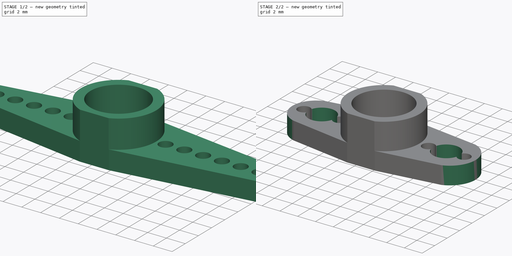
[diagram: build sequence overview — one tinted view per stage of 2, left to right]
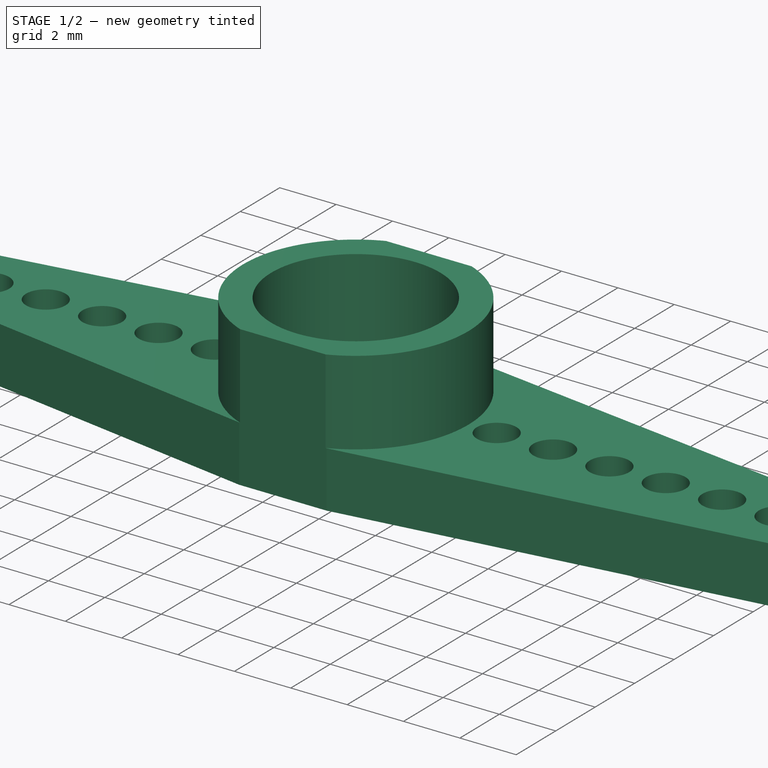
[diagram: stage 1 of 2 — iso view after this stage's code; geometry added in this stage tinted green]
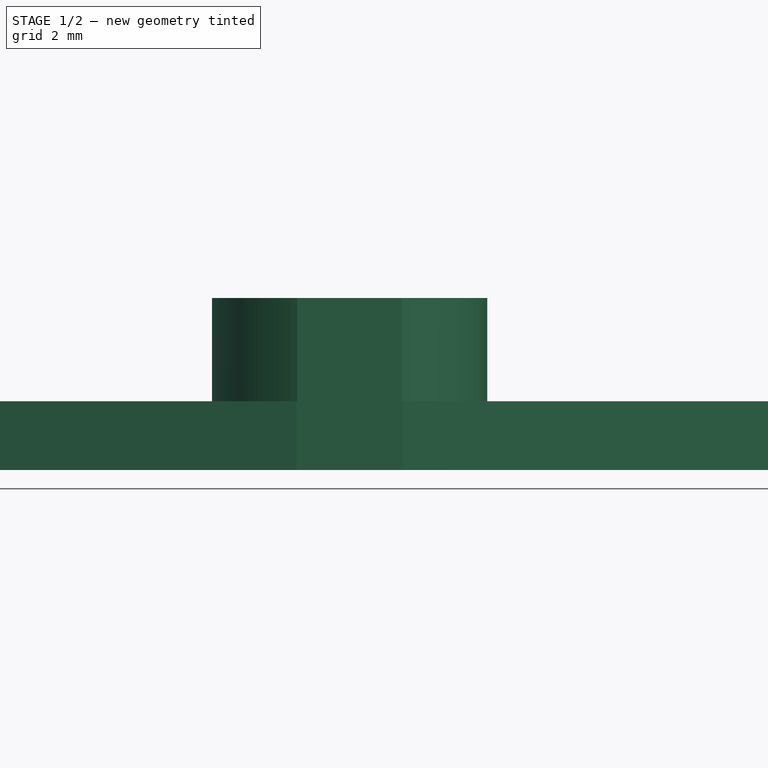
[diagram: stage 1 of 2 — front view after this stage's code; geometry added in this stage tinted green]
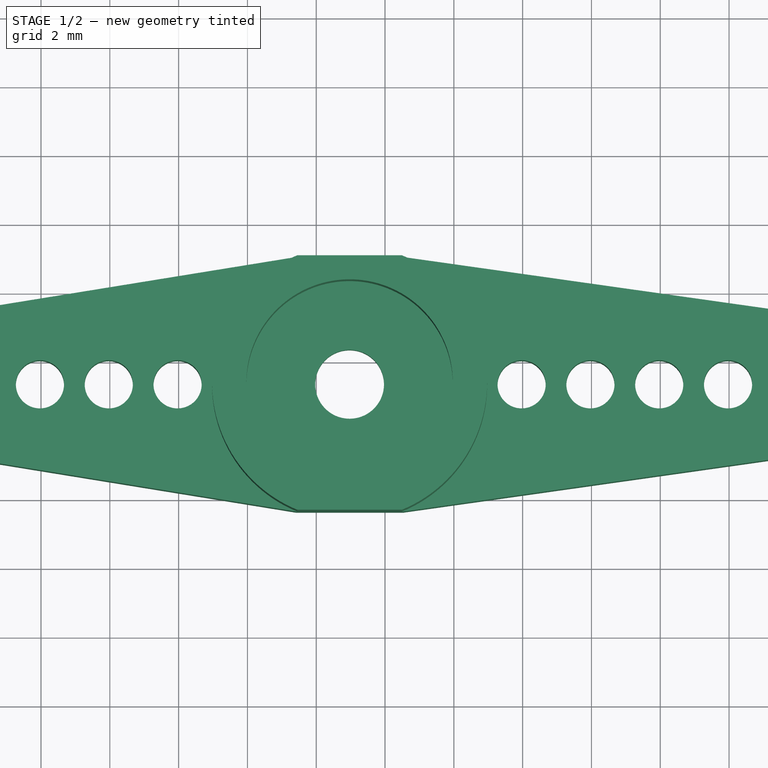
[diagram: stage 1 of 2 — top view after this stage's code; geometry added in this stage tinted green]
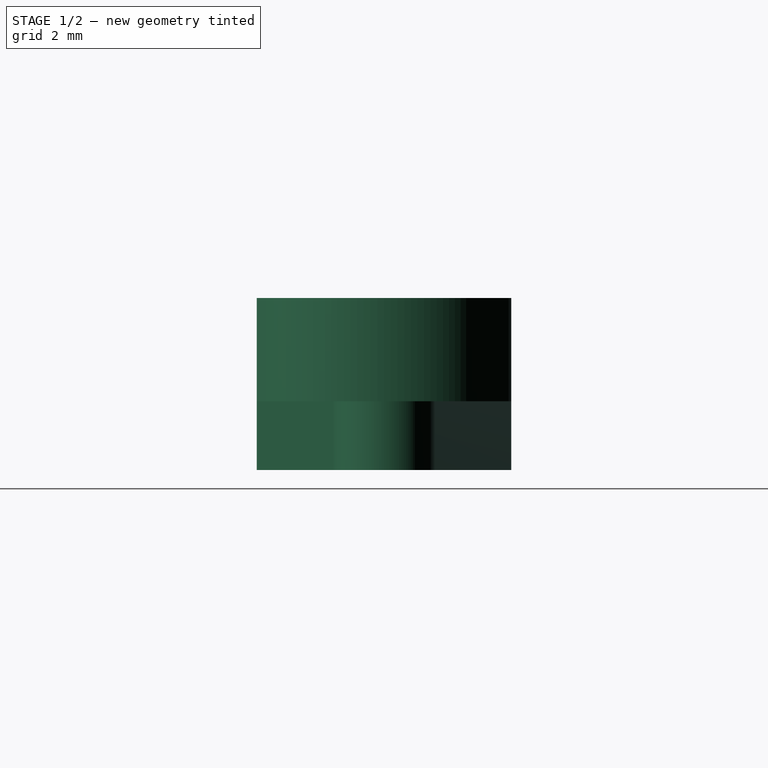
[diagram: stage 1 of 2 — right view after this stage's code; geometry added in this stage tinted green]
FCSTD DOCUMENT  (FreeCAD 0.16R6706 (Git))
Label: arm
License: All rights reserved
LicenseURL: http://en.wikipedia.org/wiki/All_rights_reserved
objects: Sketcher::SketchObject×2, PartDesign::Pocket×2, Part::Feature×1
note: 7 computed .brp shape members not serialized (recipe doc carries the construction recipe); baked Part::Feature solids carry a one-line shape summary decoded from their .brp

FEATURE [Part::Feature] Part__Feature001  label="Final-4-arms-horn"
  Placement = pos=(26.9697,9.3362,25.6722) rot=(0,0,1;0rad)
  shape: bbox 35 x 17 x 5 mm, 41 faces (baked)
FEATURE [Sketcher::SketchObject] Sketch
  Placement = pos=(26.9697,9.3362,25.6722) rot=(1,0,0;3.14159rad)
  Support = -> Part__Feature001 [Face4]
  sketch-geometry (8):
    g0: LineSegment StartX=-1.7 StartY=8.78634 StartZ=0 EndX=1.7 EndY=8.78634 EndZ=0
    g1: LineSegment StartX=1.7 StartY=8.78634 StartZ=0 EndX=1.7 EndY=3.7 EndZ=0
    g2: LineSegment StartX=1.7 StartY=3.7 StartZ=0 EndX=-1.7 EndY=3.7 EndZ=0
    g3: LineSegment StartX=-1.7 StartY=3.7 StartZ=0 EndX=-1.7 EndY=8.78634 EndZ=0
    g4: LineSegment StartX=-1.7 StartY=-3.7 StartZ=0 EndX=1.7 EndY=-3.7 EndZ=0
    g5: LineSegment StartX=1.7 StartY=-3.7 StartZ=0 EndX=1.7 EndY=-8.6 EndZ=0
    g6: LineSegment StartX=1.7 StartY=-8.6 StartZ=0 EndX=-1.7 EndY=-8.6 EndZ=0
    g7: LineSegment StartX=-1.7 StartY=-8.6 StartZ=0 EndX=-1.7 EndY=-3.7 EndZ=0
  constraints (22):
    c: Coincident(g0,g1)
    c: Coincident(g1,g2)
    c: Coincident(g2,g3)
    c: Coincident(g3,g0)
    c: Horizontal(g0)
    c: Horizontal(g2)
    c: Vertical(g1)
    c: Vertical(g3)
    c: Coincident(g4,g5)
    c: Coincident(g5,g6)
    c: Coincident(g6,g7)
    c: Coincident(g7,g4)
    c: Horizontal(g4)
    c: Horizontal(g6)
    c: Vertical(g5)
    c: Vertical(g7)
    c: Symmetric(g2,g4,g-1)
    c: Symmetric(g1,g4,g-1)
    c: PointOnObject(g1,g5)
    c: Distance(g-1,g4) = 3.7
    c: DistanceX(g-2,g4) = 1.7
    c: DistanceY(g-1,g5) = -8.6
FEATURE [PartDesign::Pocket] Pocket
  Length = 5
  Placement = pos=(26.9697,9.3362,25.6722) rot=(0,0,1;0rad)
  Sketch = -> Sketch
  Type = 1
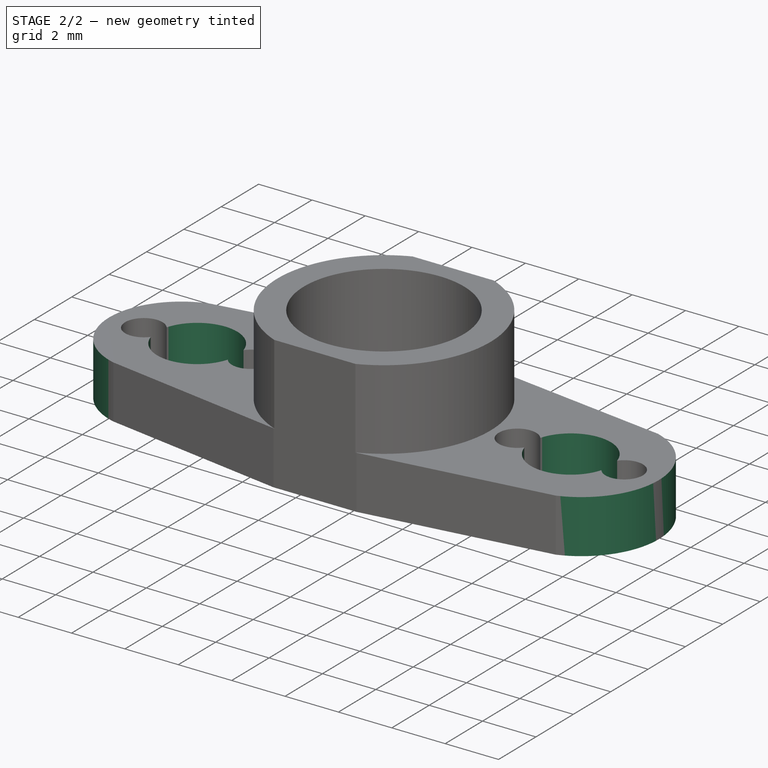
[diagram: stage 2 of 2 — iso view after this stage's code; geometry added in this stage tinted green]
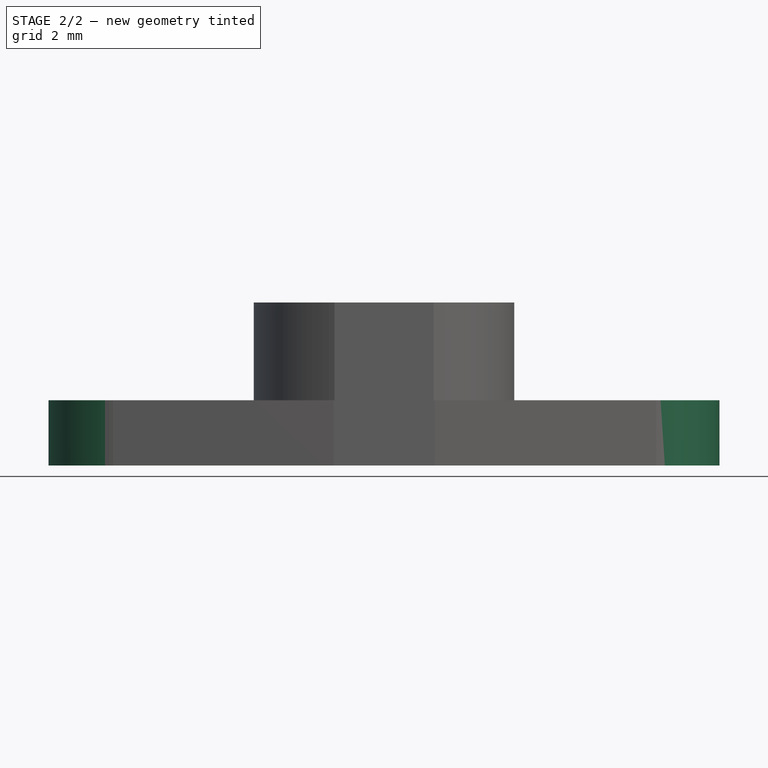
[diagram: stage 2 of 2 — front view after this stage's code; geometry added in this stage tinted green]
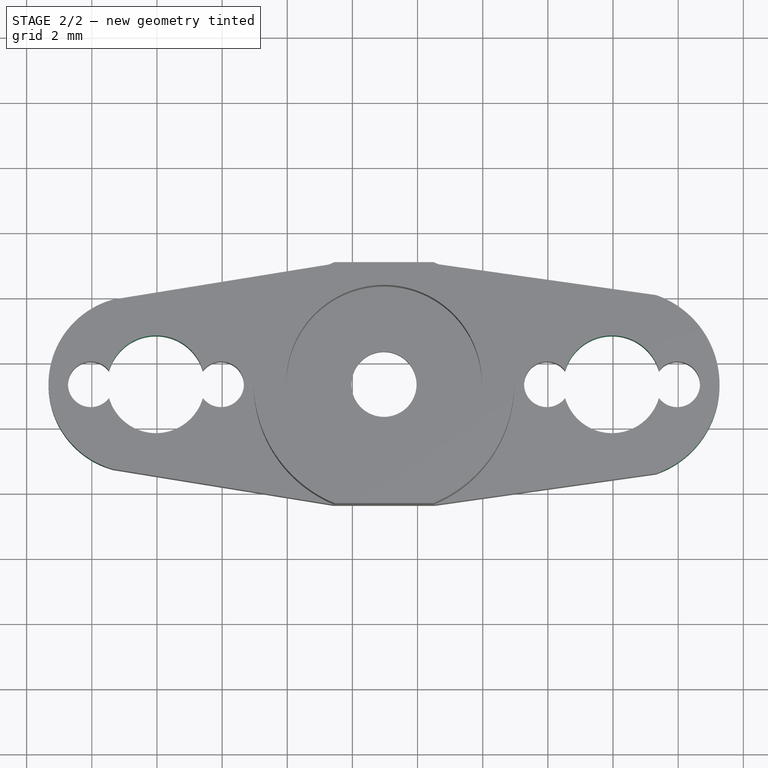
[diagram: stage 2 of 2 — top view after this stage's code; geometry added in this stage tinted green]
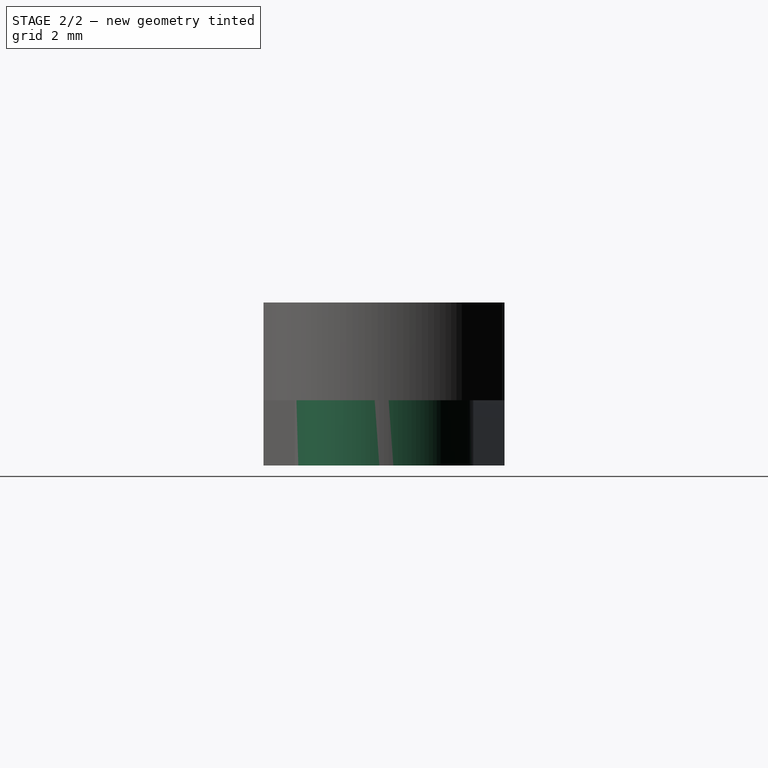
[diagram: stage 2 of 2 — right view after this stage's code; geometry added in this stage tinted green]
FEATURE [Sketcher::SketchObject] Sketch001
  Placement = pos=(26.9697,9.3362,25.6722) rot=(1,0,0;3.14159rad)
  Support = -> Pocket [Face2]
  sketch-geometry (6):
    g0: Circle CenterX=7 CenterY=0 CenterZ=0 NormalX=0 NormalY=0 NormalZ=1 Radius=1.5
    g1: Circle CenterX=-7 CenterY=0 CenterZ=0 NormalX=0 NormalY=0 NormalZ=1 Radius=1.5
    g2: ArcOfCircle CenterX=7.4 CenterY=0 CenterZ=0 NormalX=0 NormalY=0 NormalZ=1 Radius=2.9 StartAngle=4.92556 EndAngle=7.64081
    g3: ArcOfCircle CenterX=12.9589 CenterY=0 CenterZ=0 NormalX=0 NormalY=0 NormalZ=1 Radius=5.7 StartAngle=3.66203 EndAngle=8.90434
    g4: ArcOfCircle CenterX=-7.6 CenterY=0 CenterZ=0 NormalX=0 NormalY=0 NormalZ=1 Radius=2.7 StartAngle=1.70546 EndAngle=4.57772
    g5: ArcOfCircle CenterX=-11.8266 CenterY=0 CenterZ=0 NormalX=0 NormalY=0 NormalZ=1 Radius=4.7 StartAngle=0.605614 EndAngle=5.67757
  constraints (23):
    c: PointOnObject(g0,g-1)
    c: Radius(g0) = 1.5
    c: Distance(g-1,g0) = 7
    c: PointOnObject(g1,g-1)
    c: Radius(g1) = 1.5
    c: PointOnObject(g2,g-1)
    c: Radius(g2) = 2.9
    c: Distance(g-1,g2) = 7.4
    c: Distance(g-1,g2) = 8.5
    c: Coincident(g3,g2)
    c: Coincident(g3,g2)
    c: Distance(g-1,g2) = 8.5
    c: Radius(g3) = 5.7
    c: PointOnObject(g4,g-1)
    c: Distance(g-1,g4) = 7.6
    c: Radius(g4) = 2.7
    c: Distance(g-1,g4) = 8.4
    c: Distance(g-1,g4) = 8.4
    c: Distance(g-1,g1) = 7
    c: PointOnObject(g5,g-1)
    c: Coincident(g5,g4)
    c: Coincident(g5,g4)
    c: Radius(g5) = 4.7
FEATURE [PartDesign::Pocket] Pocket001
  Length = 5
  Placement = pos=(26.9697,9.3362,25.6722) rot=(0,0,1;0rad)
  Sketch = -> Sketch001
  Type = 1
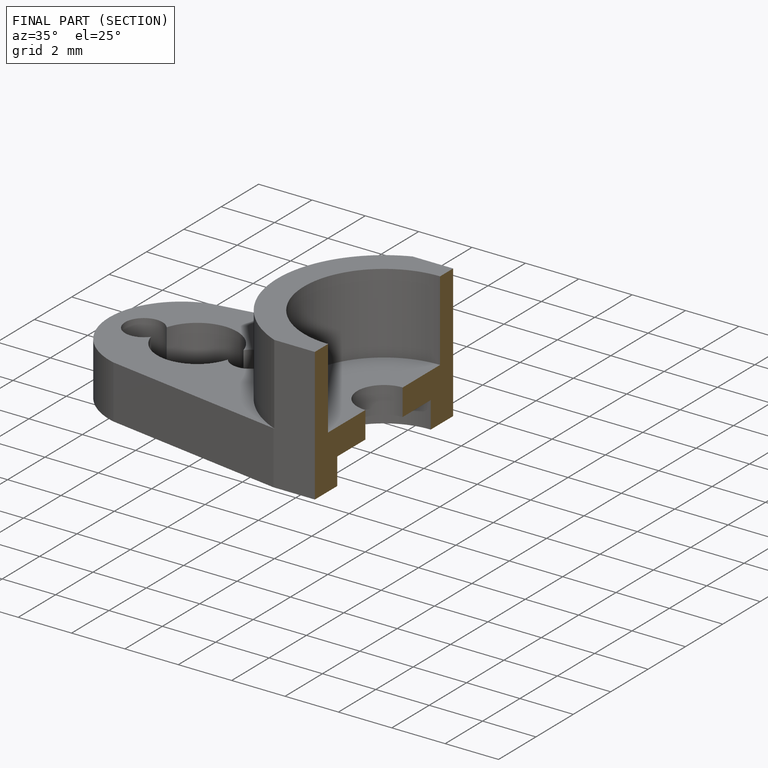
[diagram: finished part — half-section view (interior)]
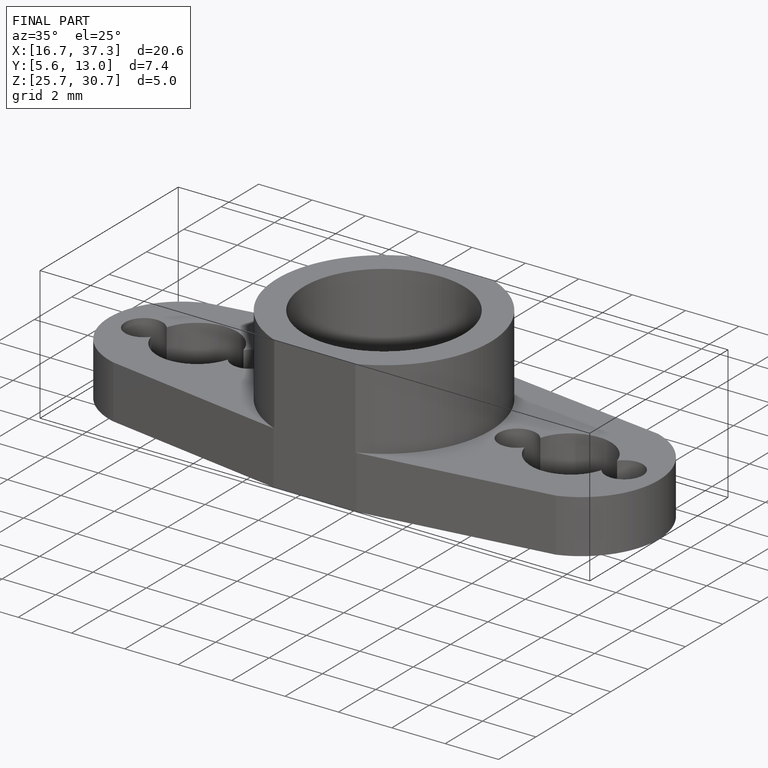
[diagram: finished part — iso view with bounding-box wireframe]
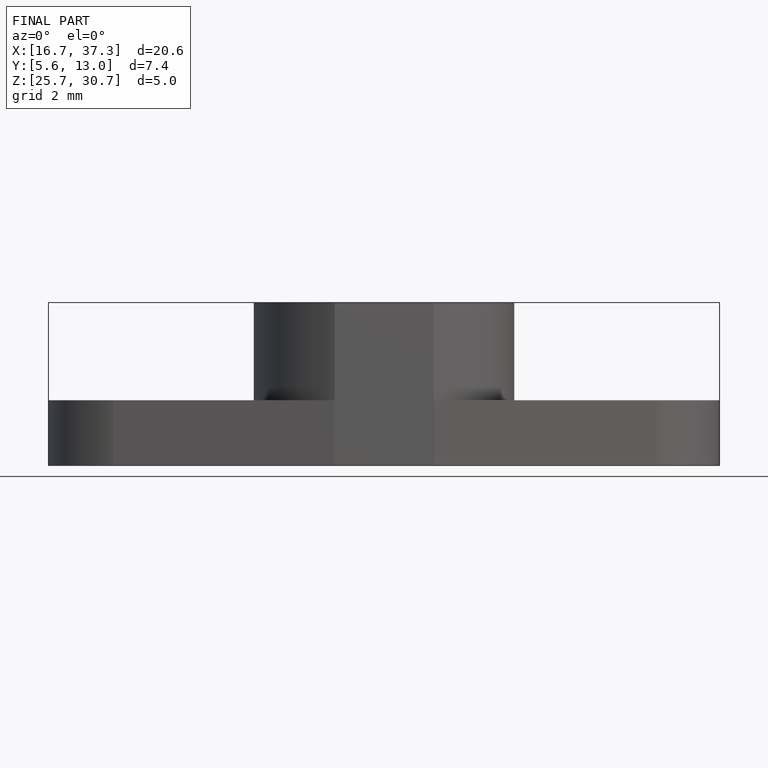
[diagram: finished part — front view with bounding-box wireframe]
